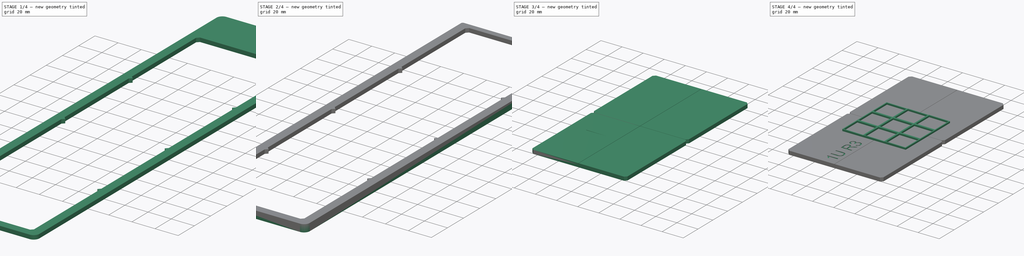
[diagram: build sequence overview — one tinted view per stage of 4, left to right]
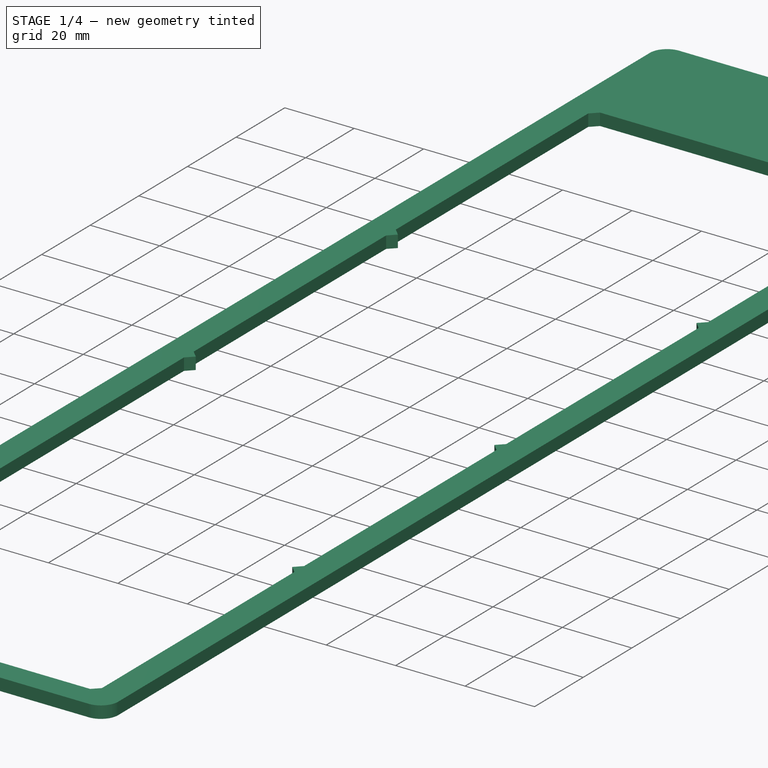
[diagram: stage 1 of 4 — iso view after this stage's code; geometry added in this stage tinted green]
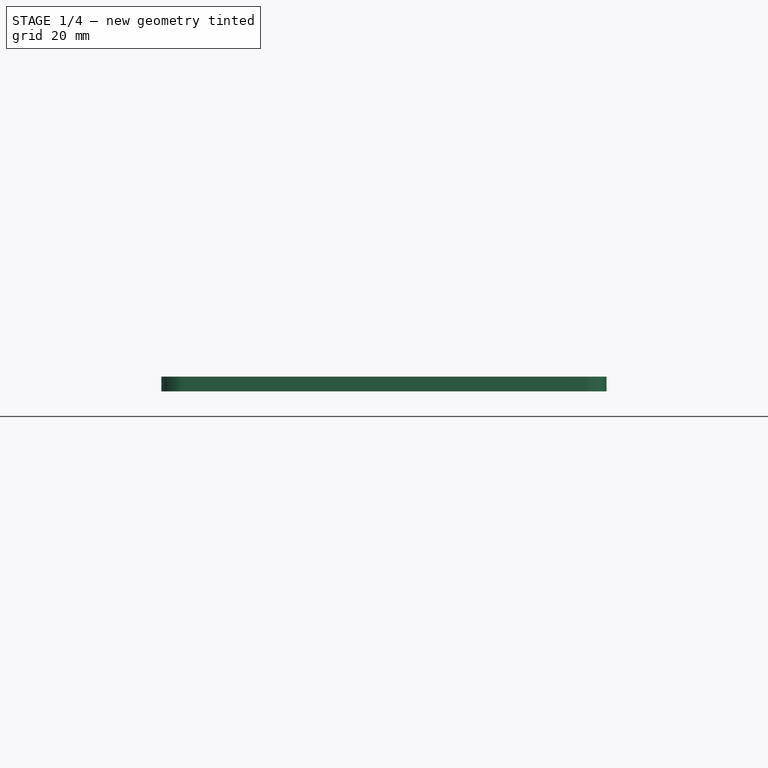
[diagram: stage 1 of 4 — front view after this stage's code; geometry added in this stage tinted green]
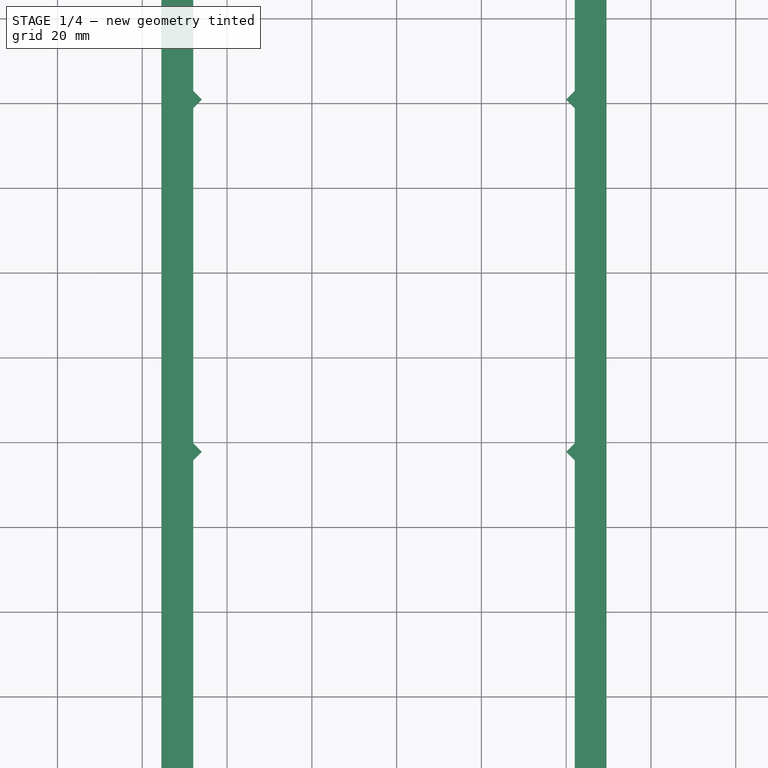
[diagram: stage 1 of 4 — top view after this stage's code; geometry added in this stage tinted green]
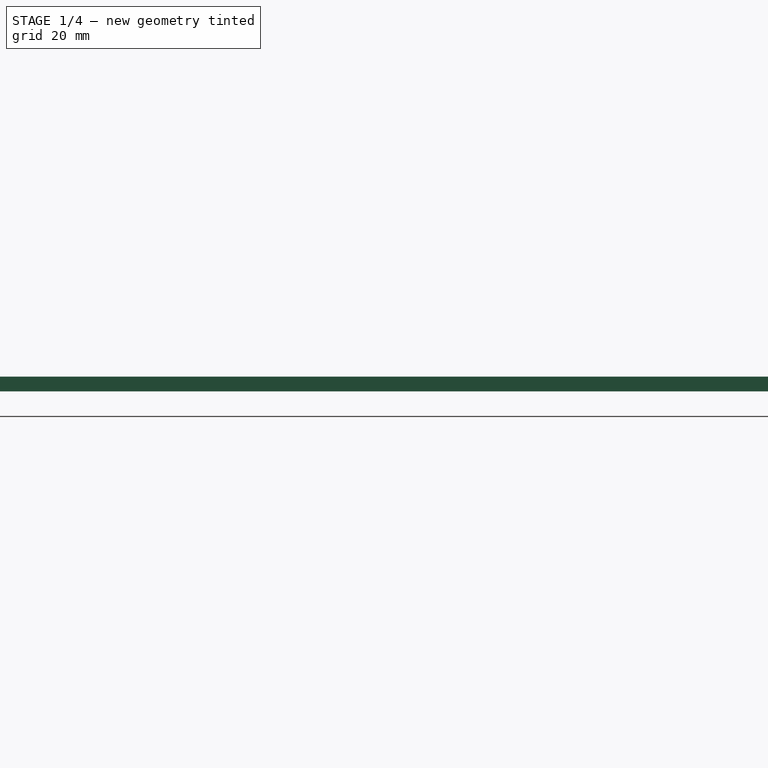
[diagram: stage 1 of 4 — right view after this stage's code; geometry added in this stage tinted green]
FCSTD DOCUMENT  (FreeCAD 1.1R20260325 (Git shallow))
Label: MX-print-rig
License: Creative Commons Attribution 4.0
objects: Sketcher::SketchObject×8, PartDesign::Pad×5, PartDesign::Pocket×4, PartDesign::Fillet×2, App::Point×2, PartDesign::Body×2, PartDesign::SubShapeBinder×1, PartDesign::LinearPattern×1, Part::Part2DObjectPython×1
note: 55 computed .brp shape members not serialized (recipe doc carries the construction recipe); baked Part::Feature solids carry a one-line shape summary decoded from their .brp

FEATURE [Sketcher::SketchObject] Sketch029
  ArcFitTolerance = 1e-06
  ExternalTypes = [0,0,0]
  FullyConstrained = true
  MakeInternals = false
  MapMode = 5
  Placement = pos=(0,0,-2) rot=(1,0,0;3.14159rad)
  _ExternalGeoVersion = 0
  sketch-geometry (4):
    g0: LineSegment StartX=24.522 StartY=-308.965 StartZ=0 EndX=24.522 EndY=-342.965 EndZ=0
    g1: LineSegment StartX=24.522 StartY=-342.965 StartZ=0 EndX=129.522 EndY=-342.965 EndZ=0
    g2: LineSegment StartX=129.522 StartY=-342.965 StartZ=0 EndX=129.522 EndY=-308.965 EndZ=0
    g3: LineSegment StartX=24.522 StartY=-308.965 StartZ=0 EndX=129.522 EndY=-308.965 EndZ=0
  constraints (10):
    c: Vertical(g0)
    c: Coincident(g0,g1)
    c: Vertical(g2)
    c: Coincident(g2,g-3)
    c: Coincident(g0,g-3)
    c: Horizontal(g0,g2)
    c: DistanceY(g2,g-4) = 5
    c: Coincident(g0,g3)
    c: Coincident(g1,g2)
    c: Coincident(g2,g3)
FEATURE [Sketcher::SketchObject] Sketch030
  ArcFitTolerance = 1e-06
  ExternalTypes = [0]
  FullyConstrained = false
  MakeInternals = false
  MapMode = 5
  _ExternalGeoVersion = 0
  sketch-geometry (4):
    g0: LineSegment StartX=24.522 StartY=342.965 StartZ=0 EndX=24.522 EndY=-35.535 EndZ=0
    g1: LineSegment StartX=24.522 StartY=-35.535 StartZ=0 EndX=129.522 EndY=-35.535 EndZ=0
    g2: LineSegment StartX=129.522 StartY=-35.535 StartZ=0 EndX=129.522 EndY=342.965 EndZ=0
    g3: LineSegment StartX=129.522 StartY=342.965 StartZ=0 EndX=24.522 EndY=342.965 EndZ=0
  constraints (10):
    c: Coincident(g0,g1)
    c: Coincident(g1,g2)
    c: Coincident(g2,g3)
    c: Coincident(g3,g0)
    c: Vertical(g0)
    c: Vertical(g2)
    c: Horizontal(g1)
    c: Horizontal(g3)
    c: Distance(g0,g2) = 105
    c: Distance(g1,g3) = 378.5
FEATURE [PartDesign::Pad] Pad009
  Direction = (0,0,1)
  Length = 1.5
  Length2 = 2
  Profile = -> Sketch030
  ReferenceAxis = -> Sketch030 [N_Axis]
  SideType = 1
  Suppressed = false
  Type = 0
  Type2 = 0
FEATURE [Sketcher::SketchObject] Sketch031
  ArcFitTolerance = 1e-06
  AttachmentSupport = -> [Pad009]
  ExternalGeometry = -> [Pad009]
  ExternalTypes = [0,0,0,0]
  FullyConstrained = true
  MakeInternals = false
  MapMode = 5
  Placement = pos=(0,0,1.5) rot=(0,0,1;0rad)
  _ExternalGeoVersion = 0
  sketch-geometry (35):
    g0: LineSegment StartX=32.022 StartY=301.965 StartZ=0 EndX=32.022 EndY=222.84 EndZ=0
    g1: LineSegment StartX=34.022 StartY=-28.535 StartZ=0 EndX=120.022 EndY=-28.535 EndZ=0
    g2: LineSegment StartX=120.022 StartY=-28.535 StartZ=0 EndX=122.022 EndY=-26.535 EndZ=0
    g3: LineSegment StartX=120.022 StartY=303.965 StartZ=0 EndX=34.022 EndY=303.965 EndZ=0
    g4: GeomPoint [constr] X=77.022 Y=-35.535 Z=0
    g5: GeomPoint [constr] X=77.022 Y=342.965 Z=0
    g6: LineSegment [constr] StartX=77.022 StartY=342.965 StartZ=0 EndX=77.022 EndY=-35.535 EndZ=0
    g7: LineSegment StartX=32.022 StartY=222.84 StartZ=0 EndX=34.022 EndY=220.84 EndZ=0
    g8: LineSegment StartX=34.022 StartY=220.84 StartZ=0 EndX=32.022 EndY=218.84 EndZ=0
    g9: LineSegment StartX=32.022 StartY=135.715 StartZ=0 EndX=34.022 EndY=137.715 EndZ=0
    g10: LineSegment StartX=34.022 StartY=137.715 StartZ=0 EndX=32.022 EndY=139.715 EndZ=0
    g11: LineSegment StartX=32.022 StartY=56.59 StartZ=0 EndX=34.022 EndY=54.59 EndZ=0
    g12: LineSegment StartX=34.022 StartY=54.59 StartZ=0 EndX=32.022 EndY=52.59 EndZ=0
    g13: LineSegment StartX=122.022 StartY=52.59 StartZ=0 EndX=120.022 EndY=54.59 EndZ=0
    g14: LineSegment StartX=120.022 StartY=54.59 StartZ=0 EndX=122.022 EndY=56.59 EndZ=0
    g15: LineSegment StartX=122.022 StartY=139.715 StartZ=0 EndX=120.022 EndY=137.715 EndZ=0
    g16: LineSegment StartX=120.022 StartY=137.715 StartZ=0 EndX=122.022 EndY=135.715 EndZ=0
    g17: LineSegment StartX=122.022 StartY=222.84 StartZ=0 EndX=122.022 EndY=301.965 EndZ=0
    g18: LineSegment StartX=120.022 StartY=220.84 StartZ=0 EndX=122.022 EndY=222.84 EndZ=0
    g19: LineSegment StartX=122.022 StartY=218.84 StartZ=0 EndX=120.022 EndY=220.84 EndZ=0
    g20: LineSegment StartX=34.022 StartY=303.965 StartZ=0 EndX=32.022 EndY=301.965 EndZ=0
    g21: LineSegment StartX=122.022 StartY=301.965 StartZ=0 EndX=120.022 EndY=303.965 EndZ=0
    g22: LineSegment [constr] StartX=34.022 StartY=220.84 StartZ=0 EndX=120.022 EndY=220.84 EndZ=0
    g23: LineSegment [constr] StartX=32.022 StartY=135.715 StartZ=0 EndX=32.022 EndY=139.715 EndZ=0
    g24: LineSegment [constr] StartX=32.022 StartY=222.84 StartZ=0 EndX=32.022 EndY=218.84 EndZ=0
    g25: LineSegment [constr] StartX=32.022 StartY=56.59 StartZ=0 EndX=32.022 EndY=52.59 EndZ=0
    g26: LineSegment [constr] StartX=34.022 StartY=54.59 StartZ=0 EndX=120.022 EndY=54.59 EndZ=0
    g27: LineSegment StartX=32.022 StartY=-26.535 StartZ=0 EndX=34.022 EndY=-28.535 EndZ=0
    g28: LineSegment [constr] StartX=34.022 StartY=137.715 StartZ=0 EndX=120.022 EndY=137.715 EndZ=0
    g29: LineSegment StartX=32.022 StartY=218.84 StartZ=0 EndX=32.022 EndY=139.715 EndZ=0
    g30: LineSegment StartX=122.022 StartY=218.84 StartZ=0 EndX=122.022 EndY=139.715 EndZ=0
    g31: LineSegment StartX=32.022 StartY=135.715 StartZ=0 EndX=32.022 EndY=56.59 EndZ=0
    g32: LineSegment StartX=122.022 StartY=135.715 StartZ=0 EndX=122.022 EndY=56.59 EndZ=0
    g33: LineSegment StartX=32.022 StartY=52.59 StartZ=0 EndX=32.022 EndY=-26.535 EndZ=0
    g34: LineSegment StartX=122.022 StartY=52.59 StartZ=0 EndX=122.022 EndY=-26.535 EndZ=0
  constraints (87):
    c: Coincident(g27,g1)
    c: Coincident(g1,g2)
    c: Coincident(g21,g3)
    c: Coincident(g20,g0)
    c: DistanceY(g2,g21) = 332.5
    c: Symmetric(g-4,g-4,g4)
    c: Symmetric(g-3,g-3,g5)
    c: Coincident(g6,g5)
    c: Coincident(g6,g4)
    c: Symmetric(g27,g1,g6)
    c: Vertical(g0)
    c: Coincident(g0,g7)
    c: Coincident(g7,g8)
    c: Coincident(g9,g10)
    c: Coincident(g11,g12)
    c: Coincident(g13,g14)
    c: Coincident(g15,g16)
    c: Coincident(g18,g17)
    c: Coincident(g19,g18)
    c: Vertical(g16,g15)
    c: Vertical(g0,g8)
    c: Vertical(g17,g19)
    c: Vertical(g11,g12)
    c: Vertical(g14,g13)
    c: Horizontal(g9,g16)
    c: Horizontal(g15,g10)
    c: Vertical(g9,g11)
    c: Vertical(g15,g13)
    c: Vertical(g18,g15)
    c: Vertical(g7,g9)
    c: Horizontal(g0,g17)
    c: Horizontal(g8,g19)
    c: Horizontal(g11,g14)
    c: Horizontal(g12,g13)
    c: DistanceX(g9,g9) = 2
    c: Symmetric(g9,g15,g6)
    c: Coincident(g3,g20)
    c: Angle(g20,g0) = 0.785398
    c: Vertical(g9,g3)
    c: Vertical(g17)
    c: Coincident(g17,g21)
    c: Symmetric(g3,g3,g6)
    c: Horizontal(g17,g0)
    c: Coincident(g22,g7)
    c: Coincident(g22,g18)
    c: Symmetric(g0,g8,g22)
    c: Coincident(g23,g9)
    c: Coincident(g23,g10)
    c: Coincident(g24,g0)
    c: Coincident(g24,g8)
    c: Equal(g24,g23)
    c: Coincident(g25,g11)
    c: Coincident(g25,g12)
    c: Coincident(g26,g11)
    c: Coincident(g26,g13)
    c: Equal(g25,g23)
    c: DistanceX(g27,g2) = 90
    c: Symmetric(g27,g2,g6)
    c: Vertical(g11,g1)
    c: Coincident(g28,g9)
    c: Coincident(g28,g15)
    c: Symmetric(g9,g10,g28)
    c: DistanceY(g-4,g1) = 7
    c: Coincident(g29,g8)
    c: Coincident(g29,g10)
    c: Vertical(g29)
    c: Coincident(g30,g19)
    c: Coincident(g30,g15)
    c: Vertical(g30)
    c: Angle(g29,g10) = 0.785398
    c: Equal(g0,g29)
    c: Coincident(g31,g9)
    c: Coincident(g31,g11)
    c: Vertical(g31)
    c: Coincident(g32,g16)
    c: Coincident(g32,g14)
    c: Vertical(g32)
    c: Symmetric(g11,g12,g26)
    c: Equal(g29,g31)
    c: Coincident(g33,g12)
    c: Coincident(g33,g27)
    c: Vertical(g33)
    c: Coincident(g34,g13)
    c: Coincident(g34,g2)
    c: Vertical(g34)
    c: Equal(g31,g33)
    c: Angle(g33,g27) = 0.785398
FEATURE [PartDesign::Pocket] Pocket021
  BaseFeature = -> Pad009
  Direction = (0,0,-1)
  Length = 5
  Length2 = 5
  Profile = -> Sketch031
  ReferenceAxis = -> Sketch031 [N_Axis]
  SideType = 0
  Suppressed = false
  Type = 1
  Type2 = 0
FEATURE [PartDesign::Fillet] Fillet002
  Base = -> Pocket021 [Edge8,Edge2,Edge1,Edge5]
  BaseFeature = -> Pocket021
  Radius = 5
  SupportTransform = false
  Suppressed = false
  UseAllEdges = false
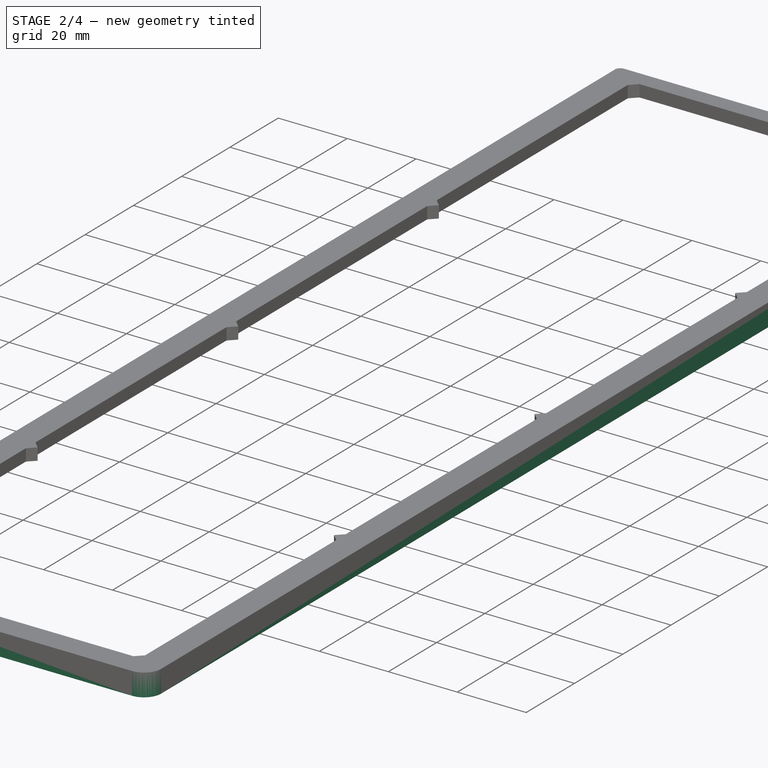
[diagram: stage 2 of 4 — iso view after this stage's code; geometry added in this stage tinted green]
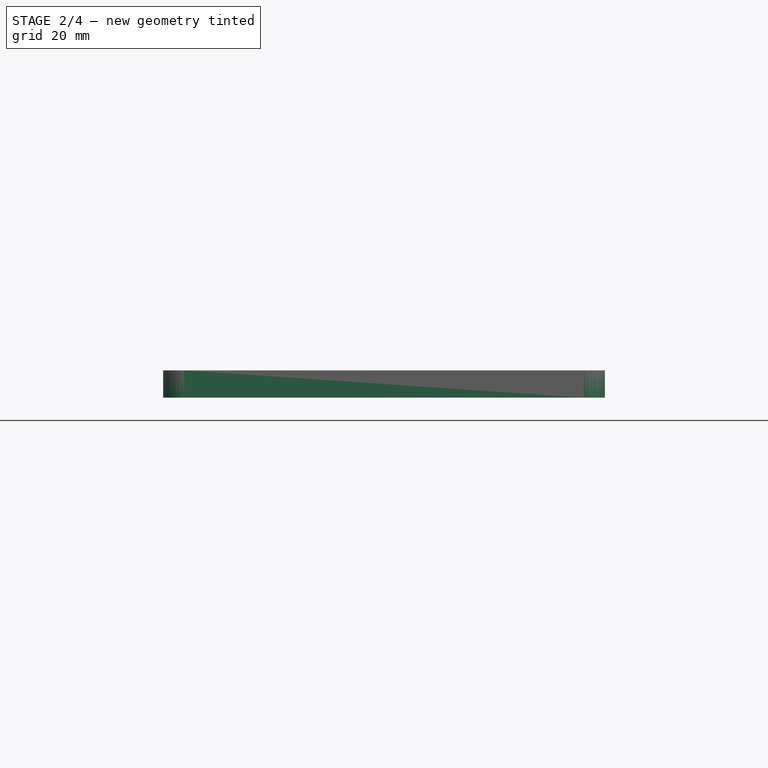
[diagram: stage 2 of 4 — front view after this stage's code; geometry added in this stage tinted green]
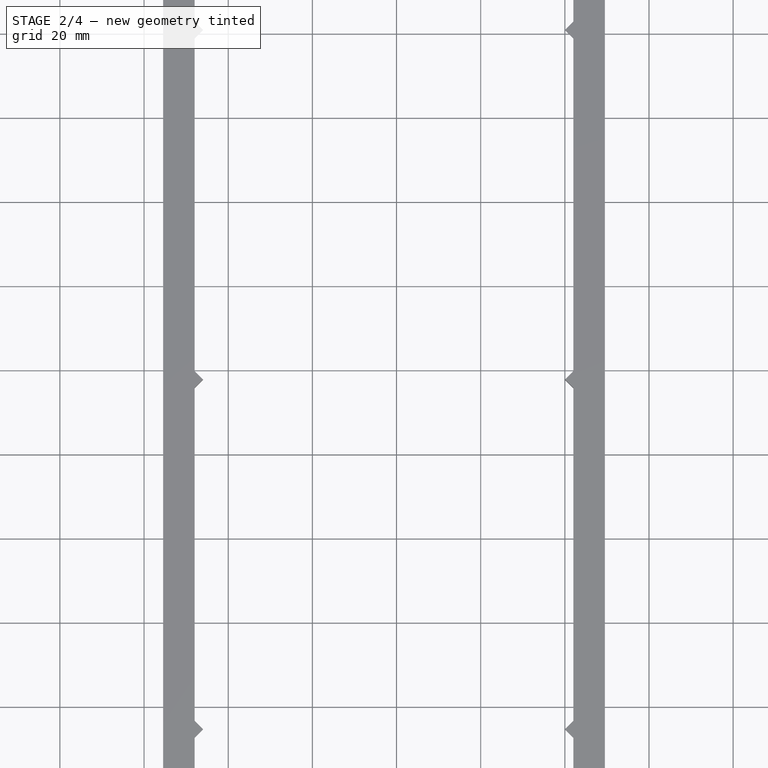
[diagram: stage 2 of 4 — top view after this stage's code; geometry added in this stage tinted green]
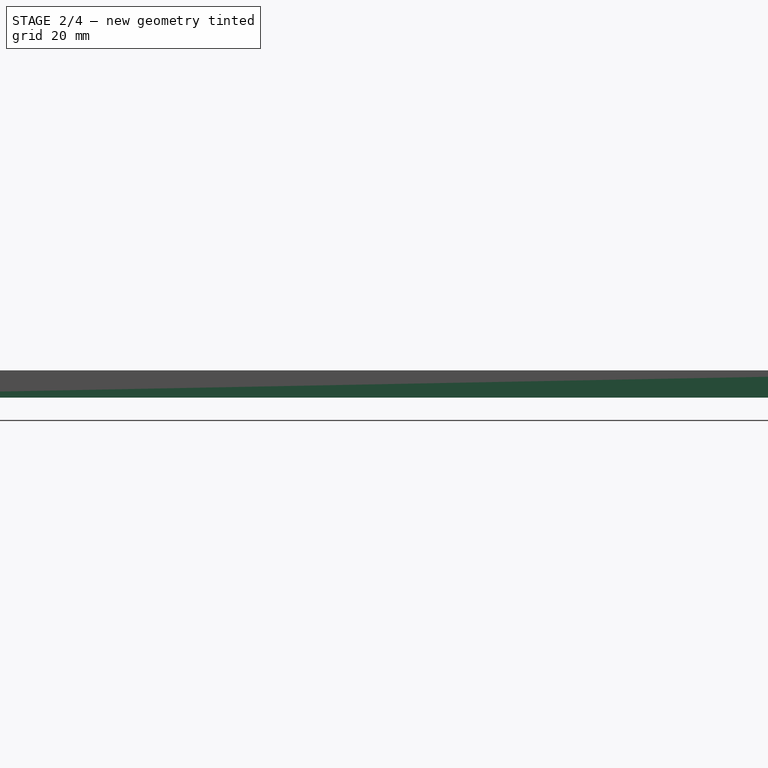
[diagram: stage 2 of 4 — right view after this stage's code; geometry added in this stage tinted green]
FEATURE [Sketcher::SketchObject] Sketch032
  ArcFitTolerance = 1e-06
  AttachmentSupport = -> [Fillet002]
  ExternalGeometry = -> [Fillet002]
  ExternalTypes = [0,0,0,0,0,0,0,0]
  FullyConstrained = true
  MakeInternals = false
  MapMode = 5
  Placement = pos=(0,0,-2) rot=(1,0,0;3.14159rad)
  _ExternalGeoVersion = 0
  sketch-geometry (8):
    g0: ArcOfCircle CenterX=29.522 CenterY=30.535 CenterZ=0 NormalX=0 NormalY=0 NormalZ=1 AngleXU=0 Radius=3 StartAngle=1.5708 EndAngle=3.14159
    g1: ArcOfCircle CenterX=124.522 CenterY=30.535 CenterZ=0 NormalX=0 NormalY=0 NormalZ=1 AngleXU=0 Radius=3 StartAngle=3e-16 EndAngle=1.5708
    g2: ArcOfCircle CenterX=124.522 CenterY=-337.965 CenterZ=0 NormalX=0 NormalY=0 NormalZ=1 AngleXU=0 Radius=3 StartAngle=4.71239 EndAngle=6.28319
    g3: ArcOfCircle CenterX=29.522 CenterY=-337.965 CenterZ=0 NormalX=0 NormalY=0 NormalZ=1 AngleXU=0 Radius=3 StartAngle=3.14159 EndAngle=4.71239
    g4: LineSegment StartX=29.522 StartY=33.535 StartZ=0 EndX=124.522 EndY=33.535 EndZ=0
    g5: LineSegment StartX=127.522 StartY=30.535 StartZ=0 EndX=127.522 EndY=-337.965 EndZ=0
    g6: LineSegment StartX=124.522 StartY=-340.965 StartZ=0 EndX=29.522 EndY=-340.965 EndZ=0
    g7: LineSegment StartX=26.522 StartY=-337.965 StartZ=0 EndX=26.522 EndY=30.535 EndZ=0
  constraints (24):
    c: Coincident(g0,g-3)
    c: Coincident(g1,g-5)
    c: Coincident(g2,g-7)
    c: Coincident(g3,g-9)
    c: Horizontal(g2,g-7)
    c: Vertical(g2,g-8)
    c: Vertical(g3,g-9)
    c: Horizontal(g-10,g3)
    c: Horizontal(g-10,g0)
    c: Vertical(g0,g-4)
    c: Vertical(g-5,g1)
    c: Horizontal(g1,g-6)
    c: Coincident(g4,g0)
    c: Coincident(g4,g1)
    c: Horizontal(g4)
    c: Coincident(g5,g1)
    c: Coincident(g5,g2)
    c: Vertical(g5)
    c: Coincident(g6,g2)
    c: Coincident(g6,g3)
    c: Horizontal(g6)
    c: Coincident(g7,g3)
    c: Coincident(g7,g0)
    c: DistanceY(g0,g-4) = 2
FEATURE [PartDesign::Pad] Pad010
  BaseFeature = -> Fillet002
  Direction = (0,0,-1)
  Length = 3
  Length2 = 10
  Profile = -> Sketch032
  ReferenceAxis = -> Sketch032 [N_Axis]
  SideType = 0
  Suppressed = false
  Type = 0
  Type2 = 0
FEATURE [PartDesign::Pocket] Pocket022
  BaseFeature = -> Pad010
  Direction = (0,1e-16,1)
  Length = 5
  Length2 = 5
  Profile = -> Sketch029
  ReferenceAxis = -> Sketch029 [N_Axis]
  Refine = true
  SideType = 2
  Suppressed = false
  Type = 1
  Type2 = 0
FEATURE [PartDesign::Fillet] Fillet003
  Base = -> Pocket022 [Edge33,Edge39]
  BaseFeature = -> Pocket022
  Radius = 1.5
  SupportTransform = false
  Suppressed = false
  UseAllEdges = false
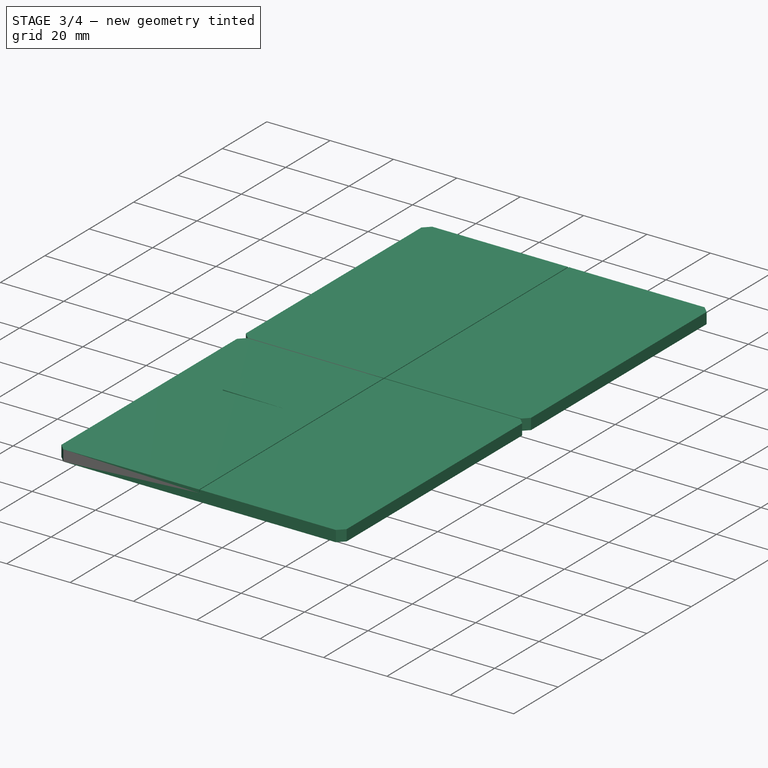
[diagram: stage 3 of 4 — iso view after this stage's code; geometry added in this stage tinted green]
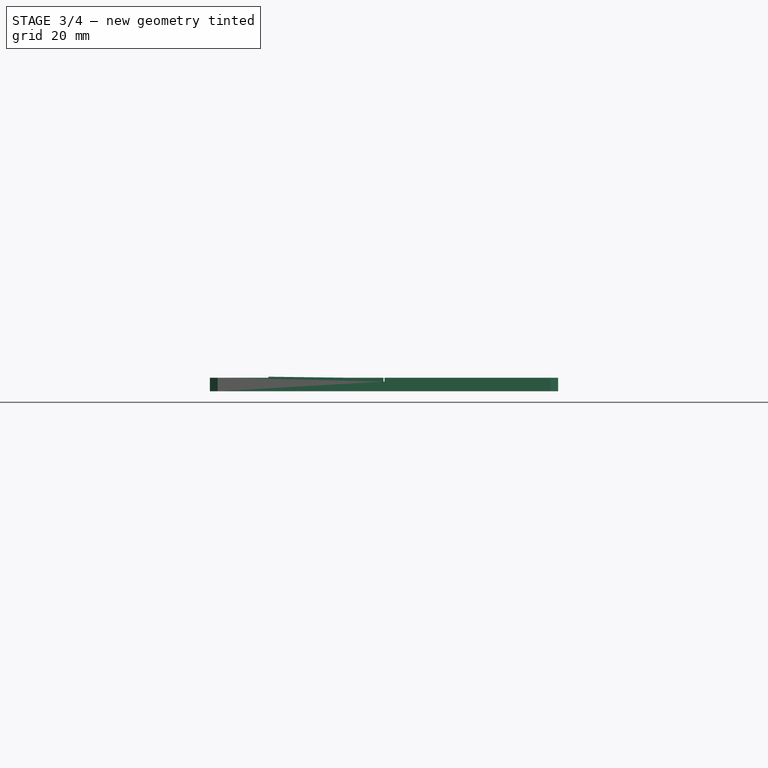
[diagram: stage 3 of 4 — front view after this stage's code; geometry added in this stage tinted green]
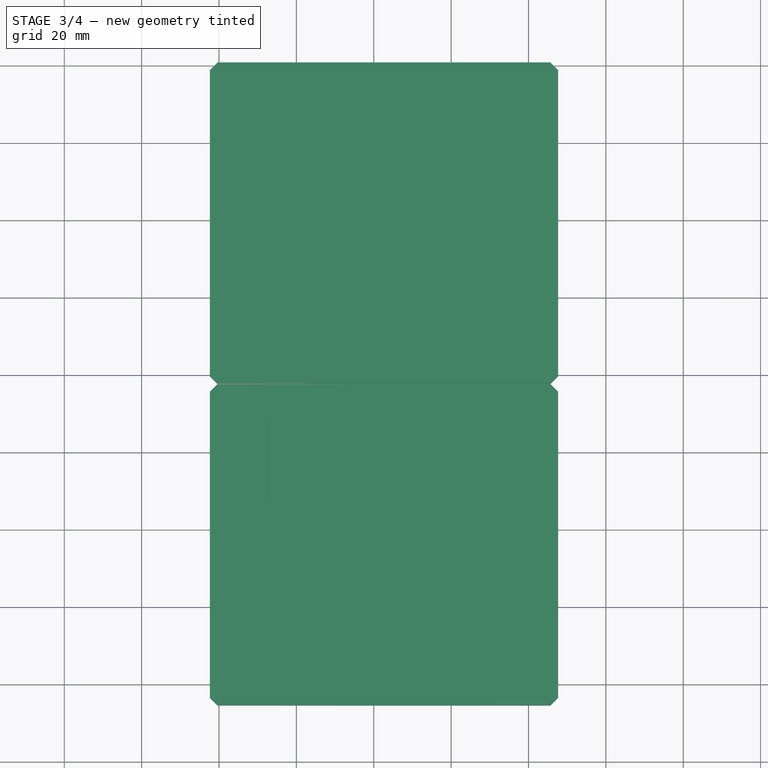
[diagram: stage 3 of 4 — top view after this stage's code; geometry added in this stage tinted green]
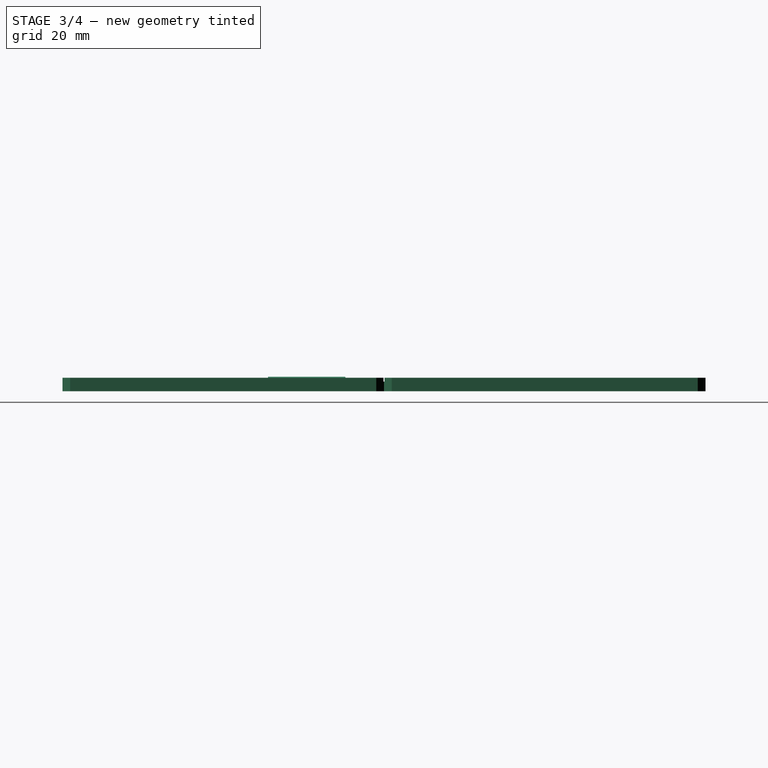
[diagram: stage 3 of 4 — right view after this stage's code; geometry added in this stage tinted green]
FEATURE [App::Point] Origin004  label="Origin005"
  Role = Origin
FEATURE [PartDesign::Body] Body002  label="Centering device for mini plate"
  AllowCompound = false
  Group = -> [Sketch030,Pad009,Sketch031,Sketch029,Pocket021,Fillet002,Sketch032,Pad010,Pocket022,Fillet003]
  Origin = -> Origin005
  Placement = pos=(139.67,0,1.71e-14) rot=(0,1,0;3.14159rad)
  Tip = -> Fillet003
FEATURE [PartDesign::SubShapeBinder] Binder
  BindCopyOnChange = 0
  BindMode = 0
  ClaimChildren = false
  Context = -> Body008 [Binder.]
  Fuse = false
  MakeFace = true
  OffsetFill = false
  OffsetIntersection = false
  OffsetJoinType = 0
  OffsetOpenResult = false
  PartialLoad = false
  Refine = true
  Relative = true
  Support = -> [Body002]
  _Version = 2
FEATURE [Sketcher::SketchObject] Sketch033
  ArcFitTolerance = 1e-06
  AttachmentSupport = -> [Binder]
  ExternalGeometry = -> [Binder]
  ExternalTypes = [0,0,0,0,0,0,0,0,0,0,0,0]
  FullyConstrained = true
  MakeInternals = false
  MapMode = 5
  Placement = pos=(2e-16,0,-1.5) rot=(1,0,0;3.14159rad)
  _ExternalGeoVersion = 0
  sketch-geometry (2):
    g0: LineSegment StartX=19.648 StartY=-220.84 StartZ=0 EndX=105.648 EndY=-220.84 EndZ=0
    g1: LineSegment StartX=105.648 StartY=-54.59 StartZ=0 EndX=19.648 EndY=-54.59 EndZ=0
  constraints (4):
    c: Coincident(g0,g-3)
    c: Coincident(g0,g-4)
    c: Coincident(g1,g-11)
    c: Coincident(g1,g-12)
FEATURE [PartDesign::Pad] Pad011
  Direction = (0,0,-1)
  Length = 10
  Length2 = 10
  Profile = -> Sketch033
  ReferenceAxis = -> Sketch033 [N_Axis]
  SideType = 0
  Suppressed = false
  Type = 3
  Type2 = 0
  UpToFace = -> Binder [Face39]
FEATURE [Sketcher::SketchObject] Sketch034
  ArcFitTolerance = 1e-06
  AttachmentSupport = -> [Pad011]
  ExternalTypes = [0,0]
  FullyConstrained = true
  MakeInternals = false
  MapMode = 5
  Placement = pos=(-2e-16,0,2) rot=(0,0,1;0rad)
  _ExternalGeoVersion = 0
  sketch-geometry (14):
    g0: LineSegment [constr] StartX=62.648 StartY=220.84 StartZ=0 EndX=62.648 EndY=54.59 EndZ=0
    g1: LineSegment [constr] StartX=19.648 StartY=137.715 StartZ=0 EndX=105.648 EndY=137.715 EndZ=0
    g2: LineSegment StartX=19.523 StartY=137.84 StartZ=0 EndX=62.523 EndY=137.84 EndZ=0
    g3: LineSegment StartX=62.523 StartY=137.84 StartZ=0 EndX=62.523 EndY=220.84 EndZ=0
    g4: LineSegment StartX=105.773 StartY=137.84 StartZ=0 EndX=62.773 EndY=137.84 EndZ=0
    g5: LineSegment StartX=62.773 StartY=137.84 StartZ=0 EndX=62.773 EndY=220.84 EndZ=0
    g6: LineSegment StartX=19.523 StartY=137.59 StartZ=0 EndX=62.523 EndY=137.59 EndZ=0
    g7: LineSegment StartX=62.523 StartY=137.59 StartZ=0 EndX=62.523 EndY=54.59 EndZ=0
    g8: LineSegment StartX=62.773 StartY=137.59 StartZ=0 EndX=62.773 EndY=54.59 EndZ=0
    g9: LineSegment StartX=105.773 StartY=137.59 StartZ=0 EndX=62.773 EndY=137.59 EndZ=0
    g10: LineSegment StartX=62.523 StartY=220.84 StartZ=0 EndX=62.773 EndY=220.84 EndZ=0
    g11: LineSegment StartX=105.773 StartY=137.84 StartZ=0 EndX=105.773 EndY=137.59 EndZ=0
    g12: LineSegment StartX=62.773 StartY=54.59 StartZ=0 EndX=62.523 EndY=54.59 EndZ=0
    g13: LineSegment StartX=19.523 StartY=137.59 StartZ=0 EndX=19.523 EndY=137.84 EndZ=0
  constraints (37):
    c: Symmetric(g0,g0,g1)
    c: Horizontal(g2)
    c: Coincident(g3,g2)
    c: Vertical(g3)
    c: Coincident(g5,g4)
    c: Coincident(g7,g6)
    c: Coincident(g8,g9)
    c: Coincident(g10,g3)
    c: Coincident(g10,g5)
    c: Horizontal(g10)
    c: Coincident(g11,g4)
    c: Coincident(g11,g9)
    c: Vertical(g11)
    c: Coincident(g12,g8)
    c: Coincident(g12,g7)
    c: Horizontal(g12)
    c: Coincident(g13,g6)
    c: Coincident(g13,g2)
    c: Equal(g13,g10)
    c: Vertical(g6,g2)
    c: Vertical(g4,g8)
    c: Horizontal(g2,g4)
    c: Horizontal(g6,g8)
    c: Vertical(g7)
    c: Horizontal(g6)
    c: Horizontal(g9)
    c: Symmetric(g2,g6,g1)
    c: Vertical(g5)
    c: Vertical(g8)
    c: Symmetric(g7,g8,g0)
    c: Symmetric(g4,g2,g0)
    c: DistanceX(g10,g10) = 0.25
    c: Symmetric(g-3,g-3,g0)
    c: Symmetric(g3,g5,g0)
    c: Coincident(g1,g-4)
    c: PointOnObject(g2,g-4)
    c: Vertical(g-3,g1)
FEATURE [PartDesign::Pocket] Pocket
  BaseFeature = -> Pad011
  Direction = (0,0,-1)
  Length = 1
  Length2 = 5
  Profile = -> Sketch034
  ReferenceAxis = -> Sketch034 [N_Axis]
  SideType = 0
  Suppressed = false
  Type = 0
  Type2 = 0
FEATURE [App::Point] Origin017  label="Origin022"
  Role = Origin
FEATURE [Sketcher::SketchObject] Sketch
  ArcFitTolerance = 1e-06
  AttachmentOffset = pos=(0,0,-127.72) rot=(0,0,1;0rad)
  AttachmentSupport = -> [Origin016]
  ExternalGeometry = -> [Pocket]
  ExternalTypes = [0]
  FullyConstrained = true
  MakeInternals = false
  MapMode = 5
  Placement = pos=(0,127.72,-2.84e-14) rot=(1,0,0;1.5708rad)
  _ExternalGeoVersion = 1
  expr: Constraints[4] = href(<<Center Fixture>>.Incline)
  sketch-geometry (3):
    g0: LineSegment StartX=52.773 StartY=2 StartZ=0 EndX=32.7746 EndY=2.25675 EndZ=0
    g1: LineSegment StartX=32.7746 StartY=2.25675 StartZ=0 EndX=32.7714 EndY=2 EndZ=0
    g2: LineSegment StartX=32.7714 StartY=2 StartZ=0 EndX=52.773 EndY=2 EndZ=0
  constraints (9):
    c: PointOnObject(g0,g-3)
    c: Coincident(g1,g0)
    c: Perpendicular(g0,g1)
    c: Distance(g0) = 20
    c: Angle(g0,g-3) = 0.012838
    c: Coincident(g2,g0)
    c: Coincident(g1,g2)
    c: Horizontal(g0,g1)
    c: DistanceX(g0,g-3) = 10
FEATURE [PartDesign::Pad] Pad
  BaseFeature = -> Pocket
  Direction = (0,-1,2e-16)
  Length = 20
  Length2 = 10
  Profile = -> Sketch
  ReferenceAxis = -> Sketch [N_Axis]
  SideType = 0
  Suppressed = false
  Type = 0
  Type2 = 0
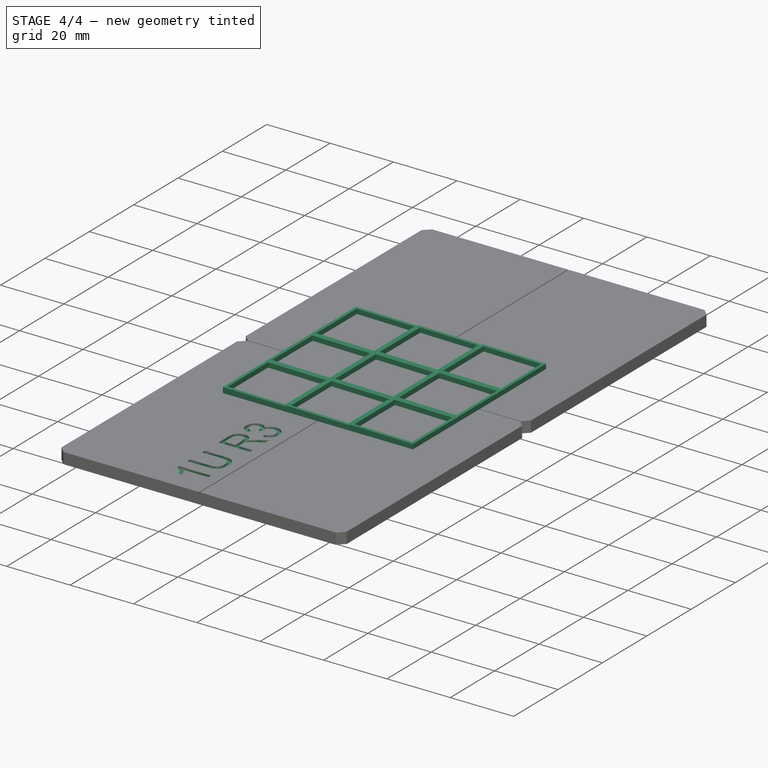
[diagram: stage 4 of 4 — iso view after this stage's code; geometry added in this stage tinted green]
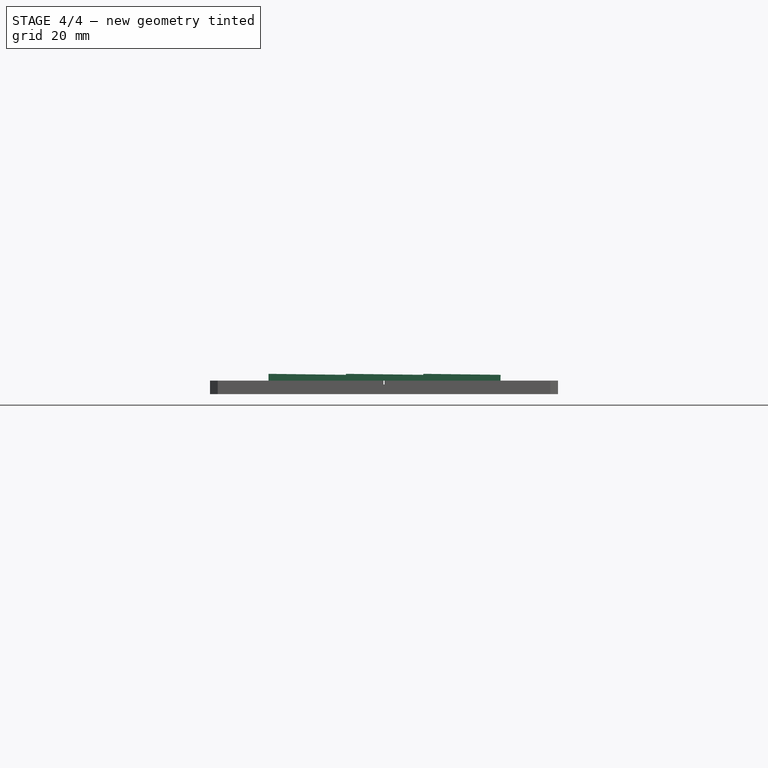
[diagram: stage 4 of 4 — front view after this stage's code; geometry added in this stage tinted green]
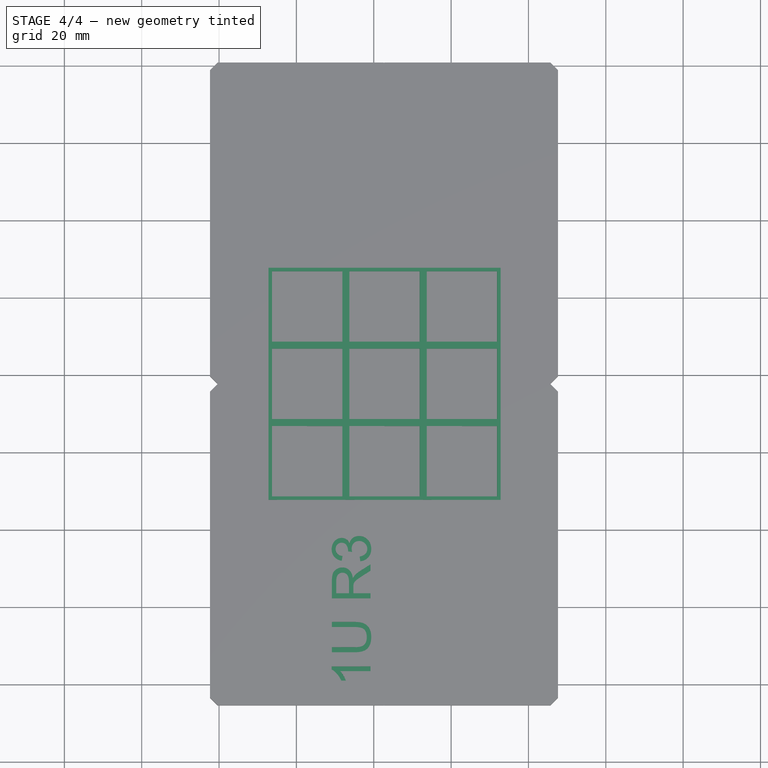
[diagram: stage 4 of 4 — top view after this stage's code; geometry added in this stage tinted green]
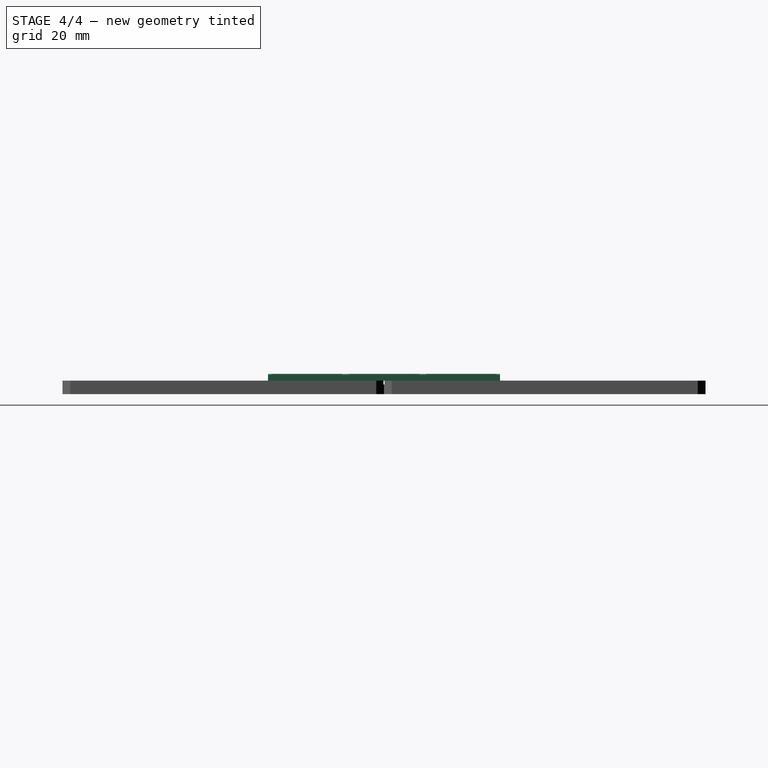
[diagram: stage 4 of 4 — right view after this stage's code; geometry added in this stage tinted green]
FEATURE [Sketcher::SketchObject] Sketch035
  ArcFitTolerance = 1e-06
  AttachmentSupport = -> [Pad]
  ExternalGeometry = -> [Pad]
  ExternalTypes = [0,0]
  FullyConstrained = true
  MakeInternals = false
  MapMode = 5
  Placement = pos=(0.0343703,6e-16,2.67709) rot=(0,1,0;0.012838rad)
  _ExternalGeoVersion = 1
  sketch-geometry (9):
    g0: LineSegment StartX=32.743 StartY=127.72 StartZ=0 EndX=32.743 EndY=107.72 EndZ=0
    g1: LineSegment StartX=32.743 StartY=107.72 StartZ=0 EndX=52.743 EndY=107.72 EndZ=0
    g2: LineSegment StartX=52.743 StartY=107.72 StartZ=0 EndX=52.743 EndY=127.72 EndZ=0
    g3: LineSegment StartX=52.743 StartY=127.72 StartZ=0 EndX=32.743 EndY=127.72 EndZ=0
    g4: LineSegment StartX=33.643 StartY=126.82 StartZ=0 EndX=33.643 EndY=108.62 EndZ=0
    g5: LineSegment StartX=33.643 StartY=108.62 StartZ=0 EndX=51.843 EndY=108.62 EndZ=0
    g6: LineSegment StartX=51.843 StartY=108.62 StartZ=0 EndX=51.843 EndY=126.82 EndZ=0
    g7: LineSegment StartX=51.843 StartY=126.82 StartZ=0 EndX=33.643 EndY=126.82 EndZ=0
    g8: GeomPoint [constr] X=42.743 Y=117.72 Z=0
  constraints (22):
    c: Coincident(g0,g1)
    c: Coincident(g1,g2)
    c: Coincident(g2,g3)
    c: Coincident(g3,g0)
    c: Vertical(g0)
    c: Vertical(g2)
    c: Horizontal(g1)
    c: Horizontal(g3)
    c: Coincident(g0,g-3)
    c: Coincident(g1,g-4)
    c: Coincident(g4,g5)
    c: Coincident(g5,g6)
    c: Coincident(g6,g7)
    c: Coincident(g7,g4)
    c: Vertical(g4)
    c: Vertical(g6)
    c: Horizontal(g5)
    c: Horizontal(g7)
    c: Distance(g4,g6) = 18.2
    c: Distance(g5,g7) = 18.2
    c: Symmetric(g4,g6,g8)
    c: Symmetric(g0,g2,g8)
FEATURE [PartDesign::Pad] Pad012
  BaseFeature = -> Pad
  Direction = (0.0128376,0,0.999918)
  Length = 1.5
  Length2 = 10
  Profile = -> Sketch035
  ReferenceAxis = -> Sketch035 [N_Axis]
  Refine = true
  SideType = 0
  Suppressed = false
  Type = 0
  Type2 = 0
FEATURE [PartDesign::LinearPattern] LinearPattern
  BaseFeature = -> Pad012
  Direction = -> X_Axis008
  Direction2 = -> Sketch035 [V_Axis]
  Length = 40
  Length2 = 40
  Mode = 1
  Mode2 = 1
  Occurrences = 3
  Occurrences2 = 3
  Offset = 20
  Offset2 = 20
  Originals = -> [Pad012,Pad]
  Refine = true
  Reversed2 = false
  SpacingPattern = [20]
  SpacingPattern2 = [0]
  Spacings = [-1,-1]
  Spacings2 = [-1,-1]
  Suppressed = false
  TransformMode = 0
FEATURE [Part::Part2DObjectPython] ShapeString  label="ShapeString001"  # Draft 2D object (typed FeaturePython)
  FontFile = <path>
  Fuse = false
  Justification = 6
  JustificationReference = 0
  KeepLeftMargin = false
  MakeFace = true
  ObliqueAngle = 0
  Placement = pos=(59.1725,60.9844,2.346) rot=(0,0,1;1.5708rad)
  ScaleToSize = true
  Size = 10
  String = 1U R3
  Tracking = 0
  expr: String = href(<<Center Fixture>>.Legend)
FEATURE [PartDesign::Pocket] Pocket023
  BaseFeature = -> LinearPattern
  Direction = (0,0,-1)
  Length = 1
  Length2 = 5
  Profile = -> ShapeString
  ReferenceAxis = -> ShapeString [N_Axis]
  SideType = 0
  Suppressed = false
  Type = 0
  Type2 = 0
FEATURE [PartDesign::Body] Body008  label="Center Fixture"
  AllowCompound = false
  Group = -> [Binder,Sketch033,Sketch034,Pad011,Pocket,Sketch,Pad,Sketch035,Pad012,LinearPattern,ShapeString,Pocket023]
  Incline = 0.735561
  Legend = 1U R3
  Origin = -> Origin016
  Tip = -> Pocket023
note: 1 file-system path scrubbed to <path> (originals preserved in the JSON sidecar)
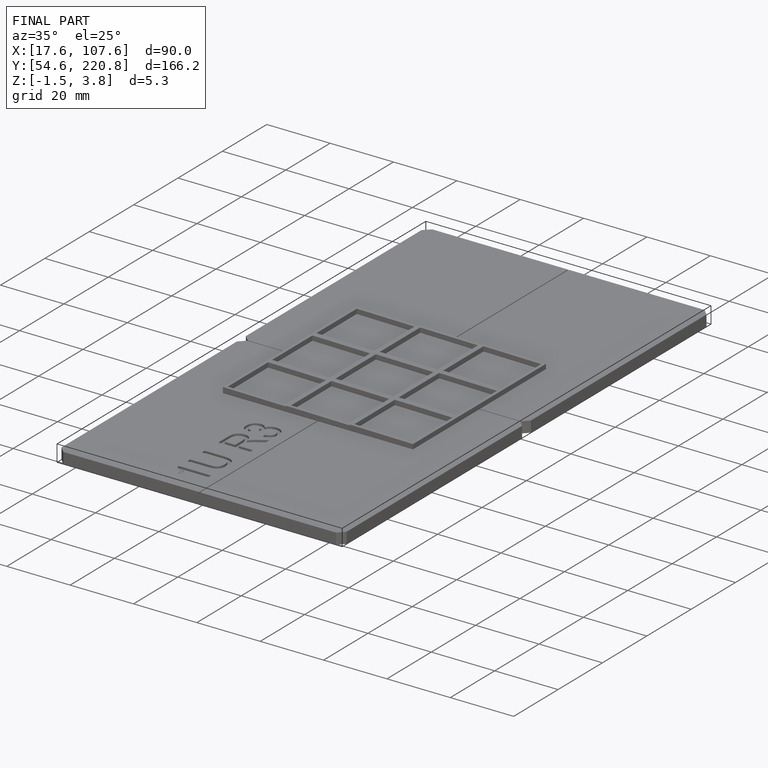
[diagram: finished part — iso view with bounding-box wireframe]
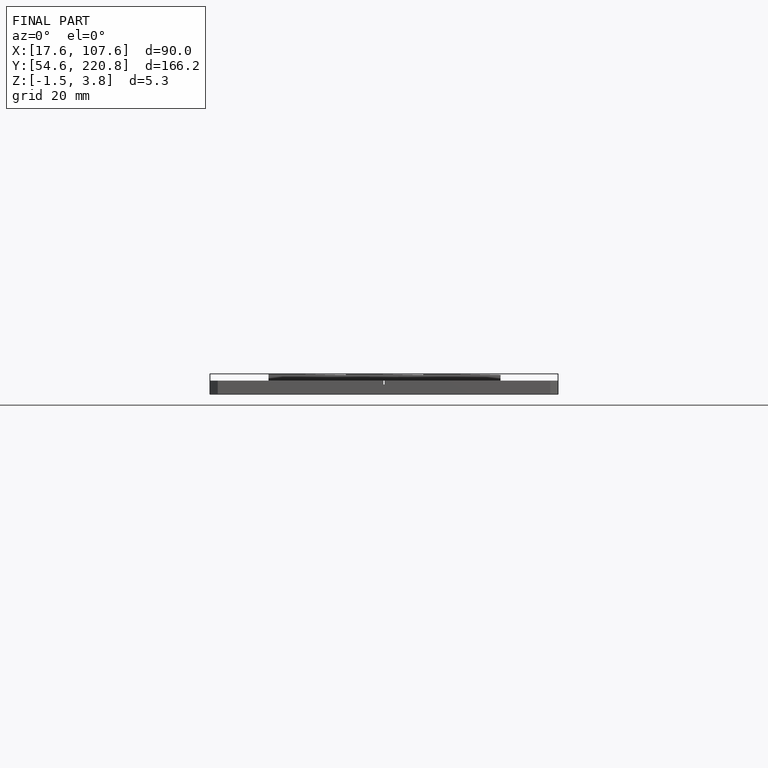
[diagram: finished part — front view with bounding-box wireframe]
